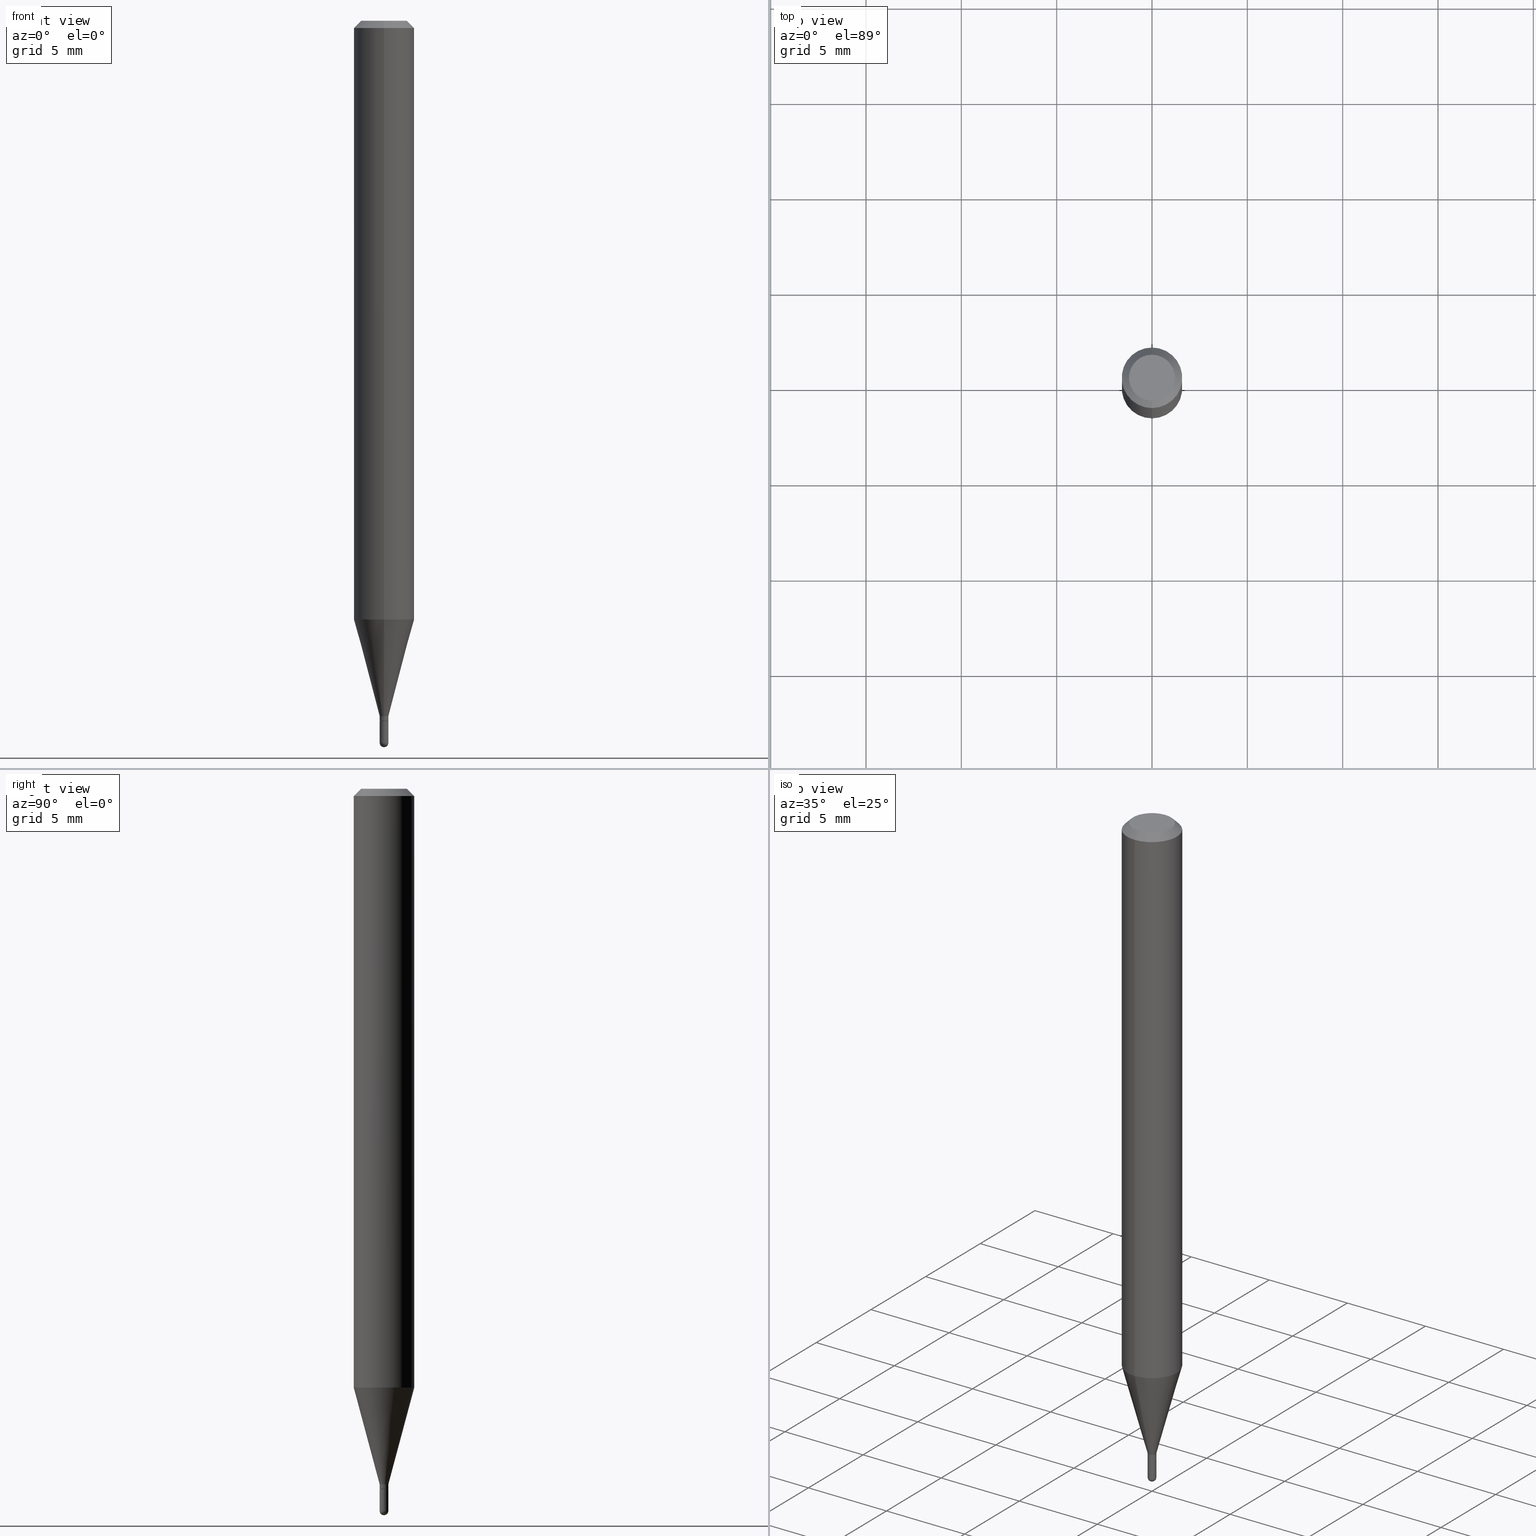
[diagram: canonical four-view strip — front | top / right | iso, engineering-drawing reading convention]
A machine part, canonical four-view strip (front | top / right | iso — engineering-drawing reading convention). The complete STEP part file that produces these views, byte-faithful:
ISO-10303-21;
HEADER;
FILE_DESCRIPTION (( 'STEP AP203' ),
    '1' );
FILE_NAME ('00456.STEP',
    '2024-03-07T17:58:19',
    ( '' ),
    ( '' ),
    'SwSTEP 2.0',
    'SolidWorks 2023',
    '' );
FILE_SCHEMA (( 'CONFIG_CONTROL_DESIGN' ));
ENDSEC;

DATA;
#1 = DIRECTION ( 'NONE',  ( 6.982962677686265922E-15, 1.000000000000000000, 0.000000000000000000 ) ) ;
#2 = LOCAL_TIME ( 12, 58, 19.00000000000000000, #109 ) ;
#3 = CC_DESIGN_SECURITY_CLASSIFICATION ( #285, ( #226 ) ) ;
#4 = DIRECTION ( 'NONE',  ( -6.982962677686265922E-15, -1.000000000000000000, 0.000000000000000000 ) ) ;
#5 = DIRECTION ( 'NONE',  ( -6.982962677686265922E-15, -1.000000000000000000, 3.491502631081576378E-15 ) ) ;
#6 = UNCERTAINTY_MEASURE_WITH_UNIT (LENGTH_MEASURE( 1.000000000000000082E-05 ), #19, 'distance_accuracy_value', 'NONE');
#7 = CARTESIAN_POINT ( 'NONE',  ( 3.645424340361776999E-29, -5.206900858334362902E-15, -1.491000000000000103 ) ) ;
#8 = EDGE_CURVE ( 'NONE', #213, #402, #412, .T. ) ;
#9 = LINE ( 'NONE', #166, #460 ) ;
#10 = AXIS2_PLACEMENT_3D ( 'NONE', #512, #437, #1 ) ;
#11 = ORIENTED_EDGE ( 'NONE', *, *, #274, .T. ) ;
#12 = EDGE_LOOP ( 'NONE', ( #209, #295, #25, #331 ) ) ;
#13 = DIRECTION ( 'NONE',  ( 5.024295867788190974E-15, 0.7071067811865681119, 0.7071067811865270336 ) ) ;
#14 =( NAMED_UNIT ( * ) SI_UNIT ( $, .STERADIAN. ) SOLID_ANGLE_UNIT ( ) );
#15 = CONICAL_SURFACE ( 'NONE', #248, 0.06250000000000000000, 0.7853981633974483900 ) ;
#16 = EDGE_LOOP ( 'NONE', ( #137, #494, #52, #21 ) ) ;
#17 = DIRECTION ( 'NONE',  ( 2.445453937894507262E-29, -3.491502631081576772E-15, -1.000000000000000000 ) ) ;
#18 = CARTESIAN_POINT ( 'NONE',  ( 3.536126394195458423E-29, -5.048712804543960535E-15, -1.446000000000000174 ) ) ;
#19 =( CONVERSION_BASED_UNIT ( 'INCH', #59 ) LENGTH_UNIT ( ) NAMED_UNIT ( #458 ) );
#20 = COORDINATED_UNIVERSAL_TIME_OFFSET ( 5, 0, .BEHIND. ) ;
#21 = ORIENTED_EDGE ( 'NONE', *, *, #191, .F. ) ;
#22 = EDGE_LOOP ( 'NONE', ( #371, #399, #63, #425 ) ) ;
#23 = DIRECTION ( 'NONE',  ( 1.000000000000000000, -6.982962677686266711E-15, 4.876176775795935232E-29 ) ) ;
#24 = EDGE_CURVE ( 'NONE', #465, #103, #496, .T. ) ;
#25 = ORIENTED_EDGE ( 'NONE', *, *, #415, .F. ) ;
#26 = CARTESIAN_POINT ( 'NONE',  ( 3.536147893743707559E-29, -5.048682015967188692E-15, -1.446000000000000174 ) ) ;
#27 = ORIENTED_EDGE ( 'NONE', *, *, #279, .T. ) ;
#28 = CARTESIAN_POINT ( 'NONE',  ( 6.284666409921301685E-17, 0.008999999999994817701, -1.491000000000000103 ) ) ;
#29 = VECTOR ( 'NONE', #325, 39.37007874015748143 ) ;
#30 = APPROVAL_PERSON_ORGANIZATION ( #232, #490, #510 ) ;
#31 = ORIENTED_EDGE ( 'NONE', *, *, #353, .T. ) ;
#32 = APPROVAL_ROLE ( '' ) ;
#33 = LINE ( 'NONE', #180, #74 ) ;
#34 = VECTOR ( 'NONE', #186, 39.37007874015748143 ) ;
#35 = DIRECTION ( 'NONE',  ( -2.445468806185136877E-29, 3.491481338843145188E-15, 1.000000000000000000 ) ) ;
#36 = DIRECTION ( 'NONE',  ( -2.445453937894507542E-29, 3.491502631081576772E-15, 1.000000000000000000 ) ) ;
#37 = CARTESIAN_POINT ( 'NONE',  ( 0.000000000000000000, 0.000000000000000000, 0.000000000000000000 ) ) ;
#38 = ADVANCED_FACE ( 'NONE', ( #445 ), #62, .T. ) ;
#39 = DIRECTION ( 'NONE',  ( -1.000000000000000000, 6.982962677686265922E-15, -4.876176775795935793E-29 ) ) ;
#40 = DIRECTION ( 'NONE',  ( -6.982962677686265922E-15, -1.000000000000000000, 0.000000000000000000 ) ) ;
#41 = CIRCLE ( 'NONE', #81, 0.06250000000000000000 ) ;
#42 = SPHERICAL_SURFACE ( 'NONE', #462, 0.009000000000000047892 ) ;
#43 = AXIS2_PLACEMENT_3D ( 'NONE', #374, #199, #155 ) ;
#44 = EDGE_CURVE ( 'NONE', #171, #203, #272, .T. ) ;
#45 = DIRECTION ( 'NONE',  ( -2.445453937894507542E-29, 3.491502631081576772E-15, 1.000000000000000000 ) ) ;
#46 = DIRECTION ( 'NONE',  ( -2.445453937894507542E-29, 3.491502631081576772E-15, 1.000000000000000000 ) ) ;
#47 = AXIS2_PLACEMENT_3D ( 'NONE', #466, #383, #69 ) ;
#48 = ORIENTED_EDGE ( 'NONE', *, *, #471, .F. ) ;
#49 = FACE_OUTER_BOUND ( 'NONE', #416, .T. ) ;
#50 = DIRECTION ( 'NONE',  ( -6.982962677686265922E-15, -1.000000000000000000, 3.491502631081576772E-15 ) ) ;
#51 = AXIS2_PLACEMENT_3D ( 'NONE', #245, #167, #130 ) ;
#52 = ORIENTED_EDGE ( 'NONE', *, *, #274, .F. ) ;
#53 = DIRECTION ( 'NONE',  ( -6.982962677686265922E-15, -1.000000000000000000, 3.491502631081576772E-15 ) ) ;
#54 = CONICAL_SURFACE ( 'NONE', #380, 0.008999999999999922992, 0.2617993877991502960 ) ;
#55 = CYLINDRICAL_SURFACE ( 'NONE', #156, 0.06250000000000000000 ) ;
#56 = EDGE_LOOP ( 'NONE', ( #356, #98, #500, #165 ) ) ;
#57 = ORIENTED_EDGE ( 'NONE', *, *, #424, .F. ) ;
#58 = MANIFOLD_SOLID_BREP ( 'Body-Move/Copy2[2]', #123 ) ;
#59 = LENGTH_MEASURE_WITH_UNIT ( LENGTH_MEASURE( 0.02539999999999999897 ), #244 );
#60 = EDGE_LOOP ( 'NONE', ( #487, #493 ) ) ;
#61 = APPROVAL_DATE_TIME ( #444, #196 ) ;
#62 = CYLINDRICAL_SURFACE ( 'NONE', #253, 0.008999999999999922992 ) ;
#63 = ORIENTED_EDGE ( 'NONE', *, *, #191, .T. ) ;
#64 = CARTESIAN_POINT ( 'NONE',  ( 3.668180906841763485E-31, -5.237253946622367771E-17, -0.01500000000000000812 ) ) ;
#65 = ORIENTED_EDGE ( 'NONE', *, *, #206, .T. ) ;
#66 = ADVANCED_FACE ( 'NONE', ( #294 ), #455, .T. ) ;
#67 = CARTESIAN_POINT ( 'NONE',  ( -4.287811248607203282E-16, -0.06250000000000005551, -0.01499999999999979128 ) ) ;
#68 = ORIENTED_EDGE ( 'NONE', *, *, #163, .T. ) ;
#69 = DIRECTION ( 'NONE',  ( -6.982962677686265922E-15, -1.000000000000000000, 4.370956789862821150E-15 ) ) ;
#70 = CIRCLE ( 'NONE', #492, 0.008999999999999922992 ) ;
#71 = EDGE_CURVE ( 'NONE', #332, #242, #178, .T. ) ;
#72 = CALENDAR_DATE ( 2024, 7, 3 ) ;
#73 = LINE ( 'NONE', #233, #315 ) ;
#74 = VECTOR ( 'NONE', #148, 39.37007874015748143 ) ;
#75 = APPROVAL_DATE_TIME ( #143, #347 ) ;
#76 = LINE ( 'NONE', #423, #34 ) ;
#77 = EDGE_CURVE ( 'NONE', #373, #106, #255, .T. ) ;
#78 = EDGE_CURVE ( 'NONE', #363, #213, #33, .T. ) ;
#79 = DIRECTION ( 'NONE',  ( 2.438088387897960049E-29, -3.491481338843145188E-15, -1.000000000000000000 ) ) ;
#80 = AXIS2_PLACEMENT_3D ( 'NONE', #439, #17, #481 ) ;
#81 = AXIS2_PLACEMENT_3D ( 'NONE', #200, #46, #403 ) ;
#82 = LINE ( 'NONE', #241, #119 ) ;
#83 = AXIS2_PLACEMENT_3D ( 'NONE', #390, #476, #122 ) ;
#84 = ORIENTED_EDGE ( 'NONE', *, *, #502, .F. ) ;
#85 = CARTESIAN_POINT ( 'NONE',  ( 3.511671854816513905E-29, -5.013797778233144791E-15, -1.436000000000000165 ) ) ;
#86 = EDGE_LOOP ( 'NONE', ( #11, #31, #108, #503 ) ) ;
#87 = FACE_OUTER_BOUND ( 'NONE', #101, .T. ) ;
#88 = PRODUCT_RELATED_PRODUCT_CATEGORY ( 'detail', '', ( #305 ) ) ;
#89 = EDGE_LOOP ( 'NONE', ( #448, #454, #411, #179 ) ) ;
#90 = CARTESIAN_POINT ( 'NONE',  ( 3.667818384447574198E-29, -5.237773099324335255E-15, -1.500000000000000222 ) ) ;
#91 = PLANE ( 'NONE',  #182 ) ;
#92 = FACE_OUTER_BOUND ( 'NONE', #86, .T. ) ;
#93 = EDGE_CURVE ( 'NONE', #402, #289, #76, .T. ) ;
#94 = DIRECTION ( 'NONE',  ( -2.445468806185136597E-29, 3.491481338843145583E-15, 1.000000000000000000 ) ) ;
#95 = CIRCLE ( 'NONE', #378, 0.008999999999999999320 ) ;
#96 = CONICAL_SURFACE ( 'NONE', #51, 0.008999999999999922992, 0.2617993877991502960 ) ;
#97 = APPROVAL_STATUS ( 'not_yet_approved' ) ;
#98 = ORIENTED_EDGE ( 'NONE', *, *, #124, .T. ) ;
#99 = LINE ( 'NONE', #453, #29 ) ;
#100 = CIRCLE ( 'NONE', #118, 0.008999999999999922992 ) ;
#101 = EDGE_LOOP ( 'NONE', ( #211, #369, #176, #368 ) ) ;
#102 = PERSON_AND_ORGANIZATION ( #223, #449 ) ;
#103 = VERTEX_POINT ( 'NONE', #336 ) ;
#104 = DATE_AND_TIME ( #469, #419 ) ;
#105 = DIRECTION ( 'NONE',  ( -6.982962677686265922E-15, -1.000000000000000000, 3.483106191921935554E-15 ) ) ;
#106 = VERTEX_POINT ( 'NONE', #227 ) ;
#107 = LINE ( 'NONE', #263, #474 ) ;
#108 = ORIENTED_EDGE ( 'NONE', *, *, #406, .F. ) ;
#109 = COORDINATED_UNIVERSAL_TIME_OFFSET ( 5, 0, .BEHIND. ) ;
#110 = CARTESIAN_POINT ( 'NONE',  ( 3.536126394195458423E-29, -5.048712804543960535E-15, -1.446000000000000174 ) ) ;
#111 = CC_DESIGN_PERSON_AND_ORGANIZATION_ASSIGNMENT ( #343, #265, ( #285 ) ) ;
#112 = COORDINATED_UNIVERSAL_TIME_OFFSET ( 5, 0, .BEHIND. ) ;
#113 = DIRECTION ( 'NONE',  ( -2.445453937894507542E-29, 3.491502631081576772E-15, 1.000000000000000000 ) ) ;
#114 = PERSON_AND_ORGANIZATION ( #223, #449 ) ;
#115 = CARTESIAN_POINT ( 'NONE',  ( -0.008999999999999999320, -5.063291499872750434E-15, -1.491000000000000103 ) ) ;
#116 = FACE_OUTER_BOUND ( 'NONE', #414, .T. ) ;
#117 = DIRECTION ( 'NONE',  ( -6.982962677686266711E-15, -1.000000000000000000, 3.491502631081576772E-15 ) ) ;
#118 = AXIS2_PLACEMENT_3D ( 'NONE', #189, #344, #507 ) ;
#119 = VECTOR ( 'NONE', #477, 39.37007874015748143 ) ;
#120 = EDGE_CURVE ( 'NONE', #359, #373, #73, .T. ) ;
#121 = LOCAL_TIME ( 12, 58, 19.00000000000000000, #112 ) ;
#122 = DIRECTION ( 'NONE',  ( 1.000000000000000000, -6.982962677686225690E-15, 0.000000000000000000 ) ) ;
#123 = CLOSED_SHELL ( 'NONE', ( #349, #66, #311, #452, #438, #318, #483, #157, #394, #387, #342, #38 ) ) ;
#124 = EDGE_CURVE ( 'NONE', #289, #450, #100, .T. ) ;
#125 = CARTESIAN_POINT ( 'NONE',  ( -6.284666409914073747E-17, -0.009000000000004936343, -1.436000000000000165 ) ) ;
#126 = CYLINDRICAL_SURFACE ( 'NONE', #480, 0.008999999999999922992 ) ;
#127 = CIRCLE ( 'NONE', #355, 0.06250000000000000000 ) ;
#128 = CYLINDRICAL_SURFACE ( 'NONE', #320, 0.06250000000000000000 ) ;
#129 = DIRECTION ( 'NONE',  ( 1.000000000000000000, -6.982962677686266711E-15, 4.876176775795935232E-29 ) ) ;
#130 = DIRECTION ( 'NONE',  ( -6.982962677686265922E-15, -1.000000000000000000, 0.000000000000000000 ) ) ;
#131 = CARTESIAN_POINT ( 'NONE',  ( 6.394884621844359852E-17, 0.008999999999994847191, -1.445500000000000229 ) ) ;
#132 = DIRECTION ( 'NONE',  ( -2.445468806185136877E-29, 3.491481338843145188E-15, 1.000000000000000000 ) ) ;
#133 = AXIS2_PLACEMENT_3D ( 'NONE', #302, #464, #467 ) ;
#134 = ORIENTED_EDGE ( 'NONE', *, *, #24, .F. ) ;
#135 = AXIS2_PLACEMENT_3D ( 'NONE', #18, #482, #367 ) ;
#136 = CARTESIAN_POINT ( 'NONE',  ( 0.000000000000000000, 0.000000000000000000, 0.000000000000000000 ) ) ;
#137 = ORIENTED_EDGE ( 'NONE', *, *, #8, .T. ) ;
#138 = ORIENTED_EDGE ( 'NONE', *, *, #120, .T. ) ;
#139 = EDGE_CURVE ( 'NONE', #332, #103, #151, .T. ) ;
#140 = VERTEX_POINT ( 'NONE', #115 ) ;
#141 = CARTESIAN_POINT ( 'NONE',  ( -6.284666409914071282E-17, -0.009000000000005000528, -1.445500000000000229 ) ) ;
#142 = ORIENTED_EDGE ( 'NONE', *, *, #77, .F. ) ;
#143 = DATE_AND_TIME ( #301, #2 ) ;
#144 = CIRCLE ( 'NONE', #135, 0.008499999999999998876 ) ;
#145 = DIRECTION ( 'NONE',  ( -6.982962677686265922E-15, -1.000000000000000000, 0.000000000000000000 ) ) ;
#146 = ORIENTED_EDGE ( 'NONE', *, *, #24, .T. ) ;
#147 = PERSON_AND_ORGANIZATION_ROLE ( 'creator' ) ;
#148 = DIRECTION ( 'NONE',  ( -4.937700262164674260E-15, -0.7071067811865632269, 0.7071067811865319186 ) ) ;
#149 = SHAPE_DEFINITION_REPRESENTATION ( #340, #170 ) ;
#150 = CARTESIAN_POINT ( 'NONE',  ( 3.536147893743707559E-29, -5.048682015967188692E-15, -1.446000000000000174 ) ) ;
#151 = LINE ( 'NONE', #67, #446 ) ;
#152 = DATE_TIME_ROLE ( 'creation_date' ) ;
#153 = PLANE ( 'NONE',  #268 ) ;
#154 = DIRECTION ( 'NONE',  ( -7.105427357601001859E-15, -1.000000000000000000, 0.000000000000000000 ) ) ;
#155 = DIRECTION ( 'NONE',  ( -6.982962677686265922E-15, -1.000000000000000000, 0.000000000000000000 ) ) ;
#156 = AXIS2_PLACEMENT_3D ( 'NONE', #440, #410, #210 ) ;
#157 = ADVANCED_FACE ( 'NONE', ( #501 ), #473, .T. ) ;
#158 = DIRECTION ( 'NONE',  ( -1.000000000000000000, 7.105427357601001070E-15, -4.926315508542082329E-29 ) ) ;
#159 = DIRECTION ( 'NONE',  ( -1.000000000000000000, 6.982962677686265922E-15, -4.883557194083112340E-29 ) ) ;
#160 = LINE ( 'NONE', #360, #427 ) ;
#161 = APPLICATION_CONTEXT ( 'configuration controlled 3d designs of mechanical parts and assemblies' ) ;
#162 = CIRCLE ( 'NONE', #197, 0.008999999999999999320 ) ;
#163 = EDGE_CURVE ( 'NONE', #334, #359, #162, .T. ) ;
#164 = AXIS2_PLACEMENT_3D ( 'NONE', #358, #324, #364 ) ;
#165 = ORIENTED_EDGE ( 'NONE', *, *, #44, .F. ) ;
#166 = CARTESIAN_POINT ( 'NONE',  ( 4.440892098500625669E-16, 0.06250000000000000000, -2.182189144425985483E-16 ) ) ;
#167 = DIRECTION ( 'NONE',  ( -2.445453937894507542E-29, 3.491502631081576772E-15, 1.000000000000000000 ) ) ;
#168 = APPLICATION_PROTOCOL_DEFINITION ( 'international standard', 'config_control_design', 1994, #161 ) ;
#169 = CARTESIAN_POINT ( 'NONE',  ( 0.000000000000000000, 0.000000000000000000, 0.000000000000000000 ) ) ;
#170 = ADVANCED_BREP_SHAPE_REPRESENTATION ( '00456', ( #393, #58, #313 ), #327 ) ;
#171 = VERTEX_POINT ( 'NONE', #498 ) ;
#172 = EDGE_CURVE ( 'NONE', #106, #373, #95, .T. ) ;
#173 = AXIS2_PLACEMENT_3D ( 'NONE', #405, #413, #129 ) ;
#174 = ORIENTED_EDGE ( 'NONE', *, *, #471, .T. ) ;
#175 = EDGE_CURVE ( 'NONE', #321, #181, #489, .T. ) ;
#176 = ORIENTED_EDGE ( 'NONE', *, *, #251, .F. ) ;
#177 = PERSON_AND_ORGANIZATION ( #223, #449 ) ;
#178 = CIRCLE ( 'NONE', #290, 0.04749999999999999362 ) ;
#179 = ORIENTED_EDGE ( 'NONE', *, *, #212, .F. ) ;
#180 = CARTESIAN_POINT ( 'NONE',  ( -5.935518276029789057E-17, -0.008500000000005046921, -1.446000000000000174 ) ) ;
#181 = VERTEX_POINT ( 'NONE', #28 ) ;
#182 = AXIS2_PLACEMENT_3D ( 'NONE', #204, #443, #53 ) ;
#183 = DIRECTION ( 'NONE',  ( 2.445453937894507542E-29, -3.491502631081576772E-15, -1.000000000000000000 ) ) ;
#184 = ORIENTED_EDGE ( 'NONE', *, *, #71, .T. ) ;
#185 = PERSON_AND_ORGANIZATION_ROLE ( 'design_supplier' ) ;
#186 = DIRECTION ( 'NONE',  ( -2.445453937894507542E-29, 3.491502631081576772E-15, 1.000000000000000000 ) ) ;
#187 = AXIS2_PLACEMENT_3D ( 'NONE', #395, #45, #258 ) ;
#188 = AXIS2_PLACEMENT_3D ( 'NONE', #238, #391, #4 ) ;
#189 = CARTESIAN_POINT ( 'NONE',  ( 3.511671854816513905E-29, -5.013797778233144791E-15, -1.436000000000000165 ) ) ;
#190 = AXIS2_PLACEMENT_3D ( 'NONE', #509, #307, #470 ) ;
#191 = EDGE_CURVE ( 'NONE', #213, #450, #107, .T. ) ;
#192 = SPHERICAL_SURFACE ( 'NONE', #10, 0.009000000000000047892 ) ;
#193 = APPLICATION_CONTEXT ( 'configuration controlled 3d designs of mechanical parts and assemblies' ) ;
#194 = DIRECTION ( 'NONE',  ( -2.445453937894507542E-29, 3.491502631081576772E-15, 1.000000000000000000 ) ) ;
#195 = FACE_OUTER_BOUND ( 'NONE', #286, .T. ) ;
#196 = APPROVAL ( #97, 'UNSPECIFIED' ) ;
#197 = AXIS2_PLACEMENT_3D ( 'NONE', #217, #298, #221 ) ;
#198 = DIRECTION ( 'NONE',  ( -2.445453937894507542E-29, 3.491502631081576772E-15, 1.000000000000000000 ) ) ;
#199 = DIRECTION ( 'NONE',  ( -2.445453937894507542E-29, 3.491502631081576772E-15, 1.000000000000000000 ) ) ;
#200 = CARTESIAN_POINT ( 'NONE',  ( 3.023400983423658885E-29, -4.316667889286455172E-15, -1.236335281795065688 ) ) ;
#201 = ORIENTED_EDGE ( 'NONE', *, *, #71, .F. ) ;
#202 = DIRECTION ( 'NONE',  ( 1.000000000000000000, -6.982962677686225690E-15, 0.000000000000000000 ) ) ;
#203 = VERTEX_POINT ( 'NONE', #428 ) ;
#204 = CARTESIAN_POINT ( 'NONE',  ( 3.536126394195458423E-29, -5.048712804543960535E-15, -1.446000000000000174 ) ) ;
#205 = LOCAL_TIME ( 12, 58, 19.00000000000000000, #20 ) ;
#206 = EDGE_CURVE ( 'NONE', #181, #140, #224, .T. ) ;
#207 = DIRECTION ( 'NONE',  ( 0.000000000000000000, 0.000000000000000000, 1.000000000000000000 ) ) ;
#208 = CIRCLE ( 'NONE', #43, 0.008499999999999998876 ) ;
#209 = ORIENTED_EDGE ( 'NONE', *, *, #175, .F. ) ;
#210 = DIRECTION ( 'NONE',  ( -6.982962677686265922E-15, -1.000000000000000000, 3.491502631081576772E-15 ) ) ;
#211 = ORIENTED_EDGE ( 'NONE', *, *, #270, .F. ) ;
#212 = EDGE_CURVE ( 'NONE', #203, #103, #377, .T. ) ;
#213 = VERTEX_POINT ( 'NONE', #141 ) ;
#214 = ORIENTED_EDGE ( 'NONE', *, *, #486, .F. ) ;
#215 = CYLINDRICAL_SURFACE ( 'NONE', #276, 0.008999999999999999320 ) ;
#216 = ORIENTED_EDGE ( 'NONE', *, *, #172, .F. ) ;
#217 = CARTESIAN_POINT ( 'NONE',  ( 3.646193990022038953E-29, -5.205798676215130324E-15, -1.491000000000000103 ) ) ;
#218 = CC_DESIGN_DATE_AND_TIME_ASSIGNMENT ( #506, #430, ( #285 ) ) ;
#219 = ORIENTED_EDGE ( 'NONE', *, *, #441, .F. ) ;
#220 = COORDINATED_UNIVERSAL_TIME_OFFSET ( 5, 0, .BEHIND. ) ;
#221 = DIRECTION ( 'NONE',  ( 1.000000000000000000, -6.982962677686225690E-15, 0.000000000000000000 ) ) ;
#222 = ORIENTED_EDGE ( 'NONE', *, *, #212, .T. ) ;
#223 = PERSON ( 'UNSPECIFIED', 'UNSPECIFIED', 'UNSPECIFIED', ('UNSPECIFIED'), ('UNSPECIFIED'), ('UNSPECIFIED') ) ;
#224 = CIRCLE ( 'NONE', #190, 0.008999999999999999320 ) ;
#225 = PERSON_AND_ORGANIZATION ( #223, #449 ) ;
#226 = PRODUCT_DEFINITION_FORMATION_WITH_SPECIFIED_SOURCE ( 'ANY', '', #305, .NOT_KNOWN. ) ;
#227 = CARTESIAN_POINT ( 'NONE',  ( -0.008999999999999999320, -5.063291499872750434E-15, -1.446000000000000174 ) ) ;
#228 = EDGE_CURVE ( 'NONE', #103, #465, #127, .T. ) ;
#229 = DIRECTION ( 'NONE',  ( 1.000000000000000000, -6.982962677686225690E-15, 0.000000000000000000 ) ) ;
#230 = AXIS2_PLACEMENT_3D ( 'NONE', #110, #333, #145 ) ;
#231 = CC_DESIGN_PERSON_AND_ORGANIZATION_ASSIGNMENT ( #292, #495, ( #305 ) ) ;
#232 = PERSON_AND_ORGANIZATION ( #223, #449 ) ;
#233 = CARTESIAN_POINT ( 'NONE',  ( 0.008999999999999999320, -6.284666409917639645E-17, 4.388559098216341408E-31 ) ) ;
#234 = DIRECTION ( 'NONE',  ( 6.982962677686265922E-15, 1.000000000000000000, -3.483106191921935554E-15 ) ) ;
#235 = CIRCLE ( 'NONE', #418, 0.04749999999999999362 ) ;
#236 = LOCAL_TIME ( 12, 58, 19.00000000000000000, #361 ) ;
#237 = CARTESIAN_POINT ( 'NONE',  ( 6.284666409921174728E-17, 0.008999999999994951275, -1.446000000000000174 ) ) ;
#238 = CARTESIAN_POINT ( 'NONE',  ( 3.534903667226511253E-29, -5.046967053228419353E-15, -1.445500000000000229 ) ) ;
#239 = CARTESIAN_POINT ( 'NONE',  ( -3.773273898774340269E-16, -0.04749999999999999362, 1.569870667658692521E-16 ) ) ;
#240 = EDGE_CURVE ( 'NONE', #363, #337, #208, .T. ) ;
#241 = CARTESIAN_POINT ( 'NONE',  ( 6.394884621844357387E-17, 0.008999999999994909641, -1.436000000000000165 ) ) ;
#242 = VERTEX_POINT ( 'NONE', #309 ) ;
#243 = PLANE ( 'NONE',  #80 ) ;
#244 =( LENGTH_UNIT ( ) NAMED_UNIT ( * ) SI_UNIT ( $, .METRE. ) );
#245 = CARTESIAN_POINT ( 'NONE',  ( 3.511671854816513905E-29, -5.013797778233144791E-15, -1.436000000000000165 ) ) ;
#246 = AXIS2_PLACEMENT_3D ( 'NONE', #64, #183, #271 ) ;
#247 = CYLINDRICAL_SURFACE ( 'NONE', #173, 0.008999999999999999320 ) ;
#248 = AXIS2_PLACEMENT_3D ( 'NONE', #346, #310, #234 ) ;
#249 = CC_DESIGN_APPROVAL ( #490, ( #285 ) ) ;
#250 = FACE_OUTER_BOUND ( 'NONE', #254, .T. ) ;
#251 = EDGE_CURVE ( 'NONE', #359, #181, #398, .T. ) ;
#252 = ORIENTED_EDGE ( 'NONE', *, *, #441, .T. ) ;
#253 = AXIS2_PLACEMENT_3D ( 'NONE', #266, #431, #426 ) ;
#254 = EDGE_LOOP ( 'NONE', ( #65, #264, #142, #300, #442 ) ) ;
#255 = CIRCLE ( 'NONE', #384, 0.008999999999999999320 ) ;
#256 = LINE ( 'NONE', #283, #397 ) ;
#257 = EDGE_LOOP ( 'NONE', ( #366, #497, #222, #134 ) ) ;
#258 = DIRECTION ( 'NONE',  ( -6.982962677686265922E-15, -1.000000000000000000, 3.483106191921935554E-15 ) ) ;
#259 = APPROVAL_ROLE ( '' ) ;
#260 = ORIENTED_EDGE ( 'NONE', *, *, #240, .T. ) ;
#261 = DIRECTION ( 'NONE',  ( -4.851104656540964275E-15, -0.7071067811865500152, -0.7071067811865450192 ) ) ;
#262 = ORIENTED_EDGE ( 'NONE', *, *, #279, .F. ) ;
#263 = CARTESIAN_POINT ( 'NONE',  ( -6.284666409917585411E-17, -0.008999999999999922992, 3.142352367973391697E-17 ) ) ;
#264 = ORIENTED_EDGE ( 'NONE', *, *, #502, .T. ) ;
#265 = PERSON_AND_ORGANIZATION_ROLE ( 'classification_officer' ) ;
#266 = CARTESIAN_POINT ( 'NONE',  ( 0.000000000000000000, 0.000000000000000000, 0.000000000000000000 ) ) ;
#267 = VECTOR ( 'NONE', #36, 39.37007874015748143 ) ;
#268 = AXIS2_PLACEMENT_3D ( 'NONE', #237, #79, #39 ) ;
#269 = DIRECTION ( 'NONE',  ( 1.000000000000000000, -6.982962677686225690E-15, 0.000000000000000000 ) ) ;
#270 = EDGE_CURVE ( 'NONE', #321, #334, #433, .T. ) ;
#271 = DIRECTION ( 'NONE',  ( 6.982962677686265922E-15, 1.000000000000000000, -3.483106191921935554E-15 ) ) ;
#272 = CIRCLE ( 'NONE', #47, 0.06250000000000000000 ) ;
#273 = CARTESIAN_POINT ( 'NONE',  ( -5.935518276029789057E-17, -0.008500000000005046921, -1.446000000000000174 ) ) ;
#274 = EDGE_CURVE ( 'NONE', #450, #289, #70, .T. ) ;
#275 = DIRECTION ( 'NONE',  ( -2.445453937894507542E-29, 3.491502631081576772E-15, 1.000000000000000000 ) ) ;
#276 = AXIS2_PLACEMENT_3D ( 'NONE', #136, #94, #23 ) ;
#277 = CC_DESIGN_APPROVAL ( #347, ( #226 ) ) ;
#278 = CARTESIAN_POINT ( 'NONE',  ( 2.166503015040211026E-46, -3.093229792654298365E-32, -8.859308210505618437E-18 ) ) ;
#279 = EDGE_CURVE ( 'NONE', #242, #332, #235, .T. ) ;
#280 = DIRECTION ( 'NONE',  ( -1.807323732225330928E-15, -0.2588190451025182970, 0.9659258262890689783 ) ) ;
#281 = DIRECTION ( 'NONE',  ( -2.445453937894507542E-29, 3.491502631081576772E-15, 1.000000000000000000 ) ) ;
#282 = CARTESIAN_POINT ( 'NONE',  ( 3.646193990022038953E-29, -5.205798676215130324E-15, -1.491000000000000103 ) ) ;
#283 = CARTESIAN_POINT ( 'NONE',  ( -0.008999999999999999320, 6.394884621840901190E-17, -4.427041581229414594E-31 ) ) ;
#284 = DIRECTION ( 'NONE',  ( -2.445453937894507542E-29, 3.491502631081576772E-15, 1.000000000000000000 ) ) ;
#285 = SECURITY_CLASSIFICATION ( '', '', #508 ) ;
#286 = EDGE_LOOP ( 'NONE', ( #293, #214 ) ) ;
#287 = ORIENTED_EDGE ( 'NONE', *, *, #8, .F. ) ;
#288 = ORIENTED_EDGE ( 'NONE', *, *, #139, .T. ) ;
#289 = VERTEX_POINT ( 'NONE', #435 ) ;
#290 = AXIS2_PLACEMENT_3D ( 'NONE', #505, #382, #338 ) ;
#291 = ADVANCED_FACE ( 'NONE', ( #350 ), #192, .T. ) ;
#292 = PERSON_AND_ORGANIZATION ( #223, #449 ) ;
#293 = ORIENTED_EDGE ( 'NONE', *, *, #240, .F. ) ;
#294 = FACE_OUTER_BOUND ( 'NONE', #457, .T. ) ;
#295 = ORIENTED_EDGE ( 'NONE', *, *, #270, .T. ) ;
#296 = CONICAL_SURFACE ( 'NONE', #352, 0.008499999999999998876, 0.7853981633974739252 ) ;
#297 = PERSON_AND_ORGANIZATION ( #223, #449 ) ;
#298 = DIRECTION ( 'NONE',  ( -2.445468806185136597E-29, 3.491481338843145583E-15, 1.000000000000000000 ) ) ;
#299 = VECTOR ( 'NONE', #280, 39.37007874015748143 ) ;
#300 = ORIENTED_EDGE ( 'NONE', *, *, #120, .F. ) ;
#301 = CALENDAR_DATE ( 2024, 7, 3 ) ;
#302 = CARTESIAN_POINT ( 'NONE',  ( 3.645424340361776999E-29, -5.206900858334362902E-15, -1.491000000000000103 ) ) ;
#303 = APPROVAL_DATE_TIME ( #104, #490 ) ;
#304 = DIRECTION ( 'NONE',  ( -2.445468806185136597E-29, 3.491481338843145583E-15, 1.000000000000000000 ) ) ;
#305 = PRODUCT ( '00456', '00456', '', ( #329 ) ) ;
#306 = CC_DESIGN_PERSON_AND_ORGANIZATION_ASSIGNMENT ( #297, #185, ( #226 ) ) ;
#307 = DIRECTION ( 'NONE',  ( -2.445468806185136597E-29, 3.491481338843145583E-15, 1.000000000000000000 ) ) ;
#308 = CALENDAR_DATE ( 2024, 7, 3 ) ;
#309 = CARTESIAN_POINT ( 'NONE',  ( 3.840629472727447874E-16, 0.04749999999999999362, -1.747056831868805136E-16 ) ) ;
#310 = DIRECTION ( 'NONE',  ( 2.445453937894507542E-29, -3.491502631081576772E-15, -1.000000000000000000 ) ) ;
#311 = ADVANCED_FACE ( 'NONE', ( #116 ), #15, .T. ) ;
#312 = FACE_OUTER_BOUND ( 'NONE', #16, .T. ) ;
#313 = AXIS2_PLACEMENT_3D ( 'NONE', #169, #207, #408 ) ;
#314 = CARTESIAN_POINT ( 'NONE',  ( 3.511671854816513905E-29, -5.013797778233144791E-15, -1.436000000000000165 ) ) ;
#315 = VECTOR ( 'NONE', #35, 39.37007874015748143 ) ;
#316 = DESIGN_CONTEXT ( 'detailed design', #193, 'design' ) ;
#317 = DIRECTION ( 'NONE',  ( -6.982962677686265922E-15, -1.000000000000000000, 0.000000000000000000 ) ) ;
#318 = ADVANCED_FACE ( 'NONE', ( #432 ), #54, .T. ) ;
#319 = FACE_OUTER_BOUND ( 'NONE', #89, .T. ) ;
#320 = AXIS2_PLACEMENT_3D ( 'NONE', #322, #284, #50 ) ;
#321 = VERTEX_POINT ( 'NONE', #90 ) ;
#322 = CARTESIAN_POINT ( 'NONE',  ( 0.000000000000000000, 0.000000000000000000, 0.000000000000000000 ) ) ;
#323 = ORIENTED_EDGE ( 'NONE', *, *, #486, .T. ) ;
#324 = DIRECTION ( 'NONE',  ( -2.445453937894507542E-29, 3.491502631081576772E-15, 1.000000000000000000 ) ) ;
#325 = DIRECTION ( 'NONE',  ( 4.937700262164548042E-15, 0.7071067811865451302, -0.7071067811865499042 ) ) ;
#326 = PERSON_AND_ORGANIZATION_ROLE ( 'creator' ) ;
#327 =( GEOMETRIC_REPRESENTATION_CONTEXT ( 3 ) GLOBAL_UNCERTAINTY_ASSIGNED_CONTEXT ( ( #6 ) ) GLOBAL_UNIT_ASSIGNED_CONTEXT ( ( #19, #491, #14 ) ) REPRESENTATION_CONTEXT ( 'NONE', 'WORKASPACE' ) );
#328 = EDGE_LOOP ( 'NONE', ( #84, #420, #68, #138, #216 ) ) ;
#329 = MECHANICAL_CONTEXT ( 'NONE', #161, 'mechanical' ) ;
#330 = CC_DESIGN_PERSON_AND_ORGANIZATION_ASSIGNMENT ( #225, #147, ( #226 ) ) ;
#331 = ORIENTED_EDGE ( 'NONE', *, *, #206, .F. ) ;
#332 = VERTEX_POINT ( 'NONE', #239 ) ;
#333 = DIRECTION ( 'NONE',  ( -2.445453937894507542E-29, 3.491502631081576772E-15, 1.000000000000000000 ) ) ;
#334 = VERTEX_POINT ( 'NONE', #351 ) ;
#335 = APPROVAL_STATUS ( 'not_yet_approved' ) ;
#336 = CARTESIAN_POINT ( 'NONE',  ( -4.364351673553912750E-16, -0.06250000000000005551, -0.01499999999999979128 ) ) ;
#337 = VERTEX_POINT ( 'NONE', #389 ) ;
#338 = DIRECTION ( 'NONE',  ( -6.982962677686266711E-15, -1.000000000000000000, 3.491502631081576772E-15 ) ) ;
#339 = CIRCLE ( 'NONE', #164, 0.008999999999999922992 ) ;
#340 = PRODUCT_DEFINITION_SHAPE ( 'NONE', 'NONE',  #463 ) ;
#341 = EDGE_LOOP ( 'NONE', ( #219, #323, #451, #57 ) ) ;
#342 = ADVANCED_FACE ( 'NONE', ( #479 ), #296, .T. ) ;
#343 = PERSON_AND_ORGANIZATION ( #223, #449 ) ;
#344 = DIRECTION ( 'NONE',  ( -2.445453937894507542E-29, 3.491502631081576772E-15, 1.000000000000000000 ) ) ;
#345 = DIRECTION ( 'NONE',  ( -2.445468806185136597E-29, 3.491481338843145583E-15, 1.000000000000000000 ) ) ;
#346 = CARTESIAN_POINT ( 'NONE',  ( 3.668180906841763485E-31, -5.237253946622367771E-17, -0.01500000000000000812 ) ) ;
#347 = APPROVAL ( #381, 'UNSPECIFIED' ) ;
#348 = LINE ( 'NONE', #125, #299 ) ;
#349 = ADVANCED_FACE ( 'NONE', ( #312 ), #126, .T. ) ;
#350 = FACE_OUTER_BOUND ( 'NONE', #12, .T. ) ;
#351 = CARTESIAN_POINT ( 'NONE',  ( -6.394884621837272429E-17, -0.009000000000005229511, -1.491000000000000103 ) ) ;
#352 = AXIS2_PLACEMENT_3D ( 'NONE', #392, #281, #40 ) ;
#353 = EDGE_CURVE ( 'NONE', #289, #171, #82, .T. ) ;
#354 = EDGE_CURVE ( 'NONE', #450, #203, #348, .T. ) ;
#355 = AXIS2_PLACEMENT_3D ( 'NONE', #459, #421, #105 ) ;
#356 = ORIENTED_EDGE ( 'NONE', *, *, #353, .F. ) ;
#357 = DIRECTION ( 'NONE',  ( -6.982962677686265922E-15, -1.000000000000000000, 0.000000000000000000 ) ) ;
#358 = CARTESIAN_POINT ( 'NONE',  ( 3.534903667226511253E-29, -5.046967053228419353E-15, -1.445500000000000229 ) ) ;
#359 = VERTEX_POINT ( 'NONE', #436 ) ;
#360 = CARTESIAN_POINT ( 'NONE',  ( 6.039613253964385864E-17, 0.008499999999994950831, -1.446000000000000174 ) ) ;
#361 = COORDINATED_UNIVERSAL_TIME_OFFSET ( 5, 0, .BEHIND. ) ;
#362 = CIRCLE ( 'NONE', #475, 0.008999999999999999320 ) ;
#363 = VERTEX_POINT ( 'NONE', #273 ) ;
#364 = DIRECTION ( 'NONE',  ( -6.982962677686265922E-15, -1.000000000000000000, 0.000000000000000000 ) ) ;
#365 = FACE_OUTER_BOUND ( 'NONE', #257, .T. ) ;
#366 = ORIENTED_EDGE ( 'NONE', *, *, #447, .F. ) ;
#367 = DIRECTION ( 'NONE',  ( -6.982962677686265922E-15, -1.000000000000000000, 0.000000000000000000 ) ) ;
#368 = ORIENTED_EDGE ( 'NONE', *, *, #163, .F. ) ;
#369 = ORIENTED_EDGE ( 'NONE', *, *, #175, .T. ) ;
#370 = CARTESIAN_POINT ( 'NONE',  ( 4.440892098500929873E-16, 0.06249999999999995143, -0.01500000000000022669 ) ) ;
#371 = ORIENTED_EDGE ( 'NONE', *, *, #93, .F. ) ;
#372 = ADVANCED_FACE ( 'NONE', ( #87 ), #42, .T. ) ;
#373 = VERTEX_POINT ( 'NONE', #400 ) ;
#374 = CARTESIAN_POINT ( 'NONE',  ( 3.536126394195458423E-29, -5.048712804543960535E-15, -1.446000000000000174 ) ) ;
#375 = ORIENTED_EDGE ( 'NONE', *, *, #139, .F. ) ;
#376 = DATE_AND_TIME ( #308, #205 ) ;
#377 = LINE ( 'NONE', #386, #267 ) ;
#378 = AXIS2_PLACEMENT_3D ( 'NONE', #150, #304, #229 ) ;
#379 = ORIENTED_EDGE ( 'NONE', *, *, #78, .F. ) ;
#380 = AXIS2_PLACEMENT_3D ( 'NONE', #85, #198, #317 ) ;
#381 = APPROVAL_STATUS ( 'not_yet_approved' ) ;
#382 = DIRECTION ( 'NONE',  ( -2.445453937894507542E-29, 3.491502631081576772E-15, 1.000000000000000000 ) ) ;
#383 = DIRECTION ( 'NONE',  ( -2.445453937894507542E-29, 3.491502631081576772E-15, 1.000000000000000000 ) ) ;
#384 = AXIS2_PLACEMENT_3D ( 'NONE', #26, #345, #269 ) ;
#385 = ADVANCED_FACE ( 'NONE', ( #511 ), #153, .F. ) ;
#386 = CARTESIAN_POINT ( 'NONE',  ( -4.364351673553916201E-16, -0.06250000000000000000, 2.182189144425985483E-16 ) ) ;
#387 = ADVANCED_FACE ( 'NONE', ( #195 ), #91, .F. ) ;
#388 = AXIS2_PLACEMENT_3D ( 'NONE', #472, #158, #154 ) ;
#389 = CARTESIAN_POINT ( 'NONE',  ( 6.217248937904383951E-17, 0.008499999999994950831, -1.446000000000000174 ) ) ;
#390 = CARTESIAN_POINT ( 'NONE',  ( 3.646193990022038953E-29, -5.205798676215130324E-15, -1.491000000000000103 ) ) ;
#391 = DIRECTION ( 'NONE',  ( -2.445453937894507542E-29, 3.491502631081576772E-15, 1.000000000000000000 ) ) ;
#392 = CARTESIAN_POINT ( 'NONE',  ( 3.536126394195458423E-29, -5.048712804543960535E-15, -1.446000000000000174 ) ) ;
#393 = MANIFOLD_SOLID_BREP ( 'Body-Move/Copy2[1]', #401 ) ;
#394 = ADVANCED_FACE ( 'NONE', ( #49 ), #243, .F. ) ;
#395 = CARTESIAN_POINT ( 'NONE',  ( 3.668180906841763485E-31, -5.237253946622367771E-17, -0.01500000000000000812 ) ) ;
#396 = DIRECTION ( 'NONE',  ( -2.445453937894507542E-29, 3.491502631081576772E-15, 1.000000000000000000 ) ) ;
#397 = VECTOR ( 'NONE', #132, 39.37007874015748143 ) ;
#398 = CIRCLE ( 'NONE', #83, 0.008999999999999999320 ) ;
#399 = ORIENTED_EDGE ( 'NONE', *, *, #424, .T. ) ;
#400 = CARTESIAN_POINT ( 'NONE',  ( 0.008999999999999999320, -5.111528680066364398E-15, -1.446000000000000174 ) ) ;
#401 = CLOSED_SHELL ( 'NONE', ( #478, #291, #385, #372, #499 ) ) ;
#402 = VERTEX_POINT ( 'NONE', #131 ) ;
#403 = DIRECTION ( 'NONE',  ( -6.982962677686265922E-15, -1.000000000000000000, 4.370956789862821150E-15 ) ) ;
#404 = CC_DESIGN_PERSON_AND_ORGANIZATION_ASSIGNMENT ( #177, #326, ( #463 ) ) ;
#405 = CARTESIAN_POINT ( 'NONE',  ( 0.000000000000000000, 0.000000000000000000, 0.000000000000000000 ) ) ;
#406 = EDGE_CURVE ( 'NONE', #203, #171, #41, .T. ) ;
#407 = DIRECTION ( 'NONE',  ( -2.445453937894507542E-29, 3.491502631081576772E-15, 1.000000000000000000 ) ) ;
#408 = DIRECTION ( 'NONE',  ( 1.000000000000000000, 0.000000000000000000, 0.000000000000000000 ) ) ;
#409 = APPROVAL_PERSON_ORGANIZATION ( #102, #196, #259 ) ;
#410 = DIRECTION ( 'NONE',  ( -2.445453937894507542E-29, 3.491502631081576772E-15, 1.000000000000000000 ) ) ;
#411 = ORIENTED_EDGE ( 'NONE', *, *, #228, .F. ) ;
#412 = CIRCLE ( 'NONE', #188, 0.008999999999999922992 ) ;
#413 = DIRECTION ( 'NONE',  ( -2.445468806185136597E-29, 3.491481338843145583E-15, 1.000000000000000000 ) ) ;
#414 = EDGE_LOOP ( 'NONE', ( #201, #288, #461, #48 ) ) ;
#415 = EDGE_CURVE ( 'NONE', #140, #334, #362, .T. ) ;
#416 = EDGE_LOOP ( 'NONE', ( #27, #184 ) ) ;
#417 = CALENDAR_DATE ( 2024, 7, 3 ) ;
#418 = AXIS2_PLACEMENT_3D ( 'NONE', #278, #275, #117 ) ;
#419 = LOCAL_TIME ( 12, 58, 19.00000000000000000, #220 ) ;
#420 = ORIENTED_EDGE ( 'NONE', *, *, #415, .T. ) ;
#421 = DIRECTION ( 'NONE',  ( -2.445453937894507542E-29, 3.491502631081576772E-15, 1.000000000000000000 ) ) ;
#422 = EDGE_LOOP ( 'NONE', ( #375, #262, #174, #146 ) ) ;
#423 = CARTESIAN_POINT ( 'NONE',  ( 6.394884621840845723E-17, 0.008999999999999922992, -3.142352367973391697E-17 ) ) ;
#424 = EDGE_CURVE ( 'NONE', #402, #213, #339, .T. ) ;
#425 = ORIENTED_EDGE ( 'NONE', *, *, #124, .F. ) ;
#426 = DIRECTION ( 'NONE',  ( -6.982962677686265922E-15, -1.000000000000000000, 3.491502631081576378E-15 ) ) ;
#427 = VECTOR ( 'NONE', #13, 39.37007874015748143 ) ;
#428 = CARTESIAN_POINT ( 'NONE',  ( -4.364351673553614462E-16, -0.06250000000000431599, -1.236335281795065466 ) ) ;
#429 = CC_DESIGN_DATE_AND_TIME_ASSIGNMENT ( #376, #152, ( #463 ) ) ;
#430 = DATE_TIME_ROLE ( 'classification_date' ) ;
#431 = DIRECTION ( 'NONE',  ( -2.445453937894507542E-29, 3.491502631081576772E-15, 1.000000000000000000 ) ) ;
#432 = FACE_OUTER_BOUND ( 'NONE', #56, .T. ) ;
#433 = CIRCLE ( 'NONE', #388, 0.009000000000000047892 ) ;
#434 = DIRECTION ( 'NONE',  ( 6.982962677686265922E-15, 1.000000000000000000, 0.000000000000000000 ) ) ;
#435 = CARTESIAN_POINT ( 'NONE',  ( 2.540190280342682868E-16, 0.008999999999994909641, -1.436000000000000165 ) ) ;
#436 = CARTESIAN_POINT ( 'NONE',  ( 0.008999999999999999320, -5.190087010190335214E-15, -1.491000000000000103 ) ) ;
#437 = DIRECTION ( 'NONE',  ( -1.000000000000000000, 6.982962677686265922E-15, -4.883557194083112340E-29 ) ) ;
#438 = ADVANCED_FACE ( 'NONE', ( #92 ), #96, .T. ) ;
#439 = CARTESIAN_POINT ( 'NONE',  ( 3.316907271900976096E-16, 0.04749999999999999362, -1.702760290816277106E-16 ) ) ;
#440 = CARTESIAN_POINT ( 'NONE',  ( 0.000000000000000000, 0.000000000000000000, 0.000000000000000000 ) ) ;
#441 = EDGE_CURVE ( 'NONE', #337, #402, #160, .T. ) ;
#442 = ORIENTED_EDGE ( 'NONE', *, *, #251, .T. ) ;
#443 = DIRECTION ( 'NONE',  ( -2.445453937894507262E-29, 3.491502631081576772E-15, 1.000000000000000000 ) ) ;
#444 = DATE_AND_TIME ( #417, #236 ) ;
#445 = FACE_OUTER_BOUND ( 'NONE', #22, .T. ) ;
#446 = VECTOR ( 'NONE', #261, 39.37007874015748143 ) ;
#447 = EDGE_CURVE ( 'NONE', #171, #465, #9, .T. ) ;
#448 = ORIENTED_EDGE ( 'NONE', *, *, #406, .T. ) ;
#449 = ORGANIZATION ( 'UNSPECIFIED', 'UNSPECIFIED', '' ) ;
#450 = VERTEX_POINT ( 'NONE', #488 ) ;
#451 = ORIENTED_EDGE ( 'NONE', *, *, #78, .T. ) ;
#452 = ADVANCED_FACE ( 'NONE', ( #319 ), #128, .T. ) ;
#453 = CARTESIAN_POINT ( 'NONE',  ( 4.364351673553919652E-16, 0.06249999999999995143, -0.01500000000000022669 ) ) ;
#454 = ORIENTED_EDGE ( 'NONE', *, *, #447, .T. ) ;
#455 = CONICAL_SURFACE ( 'NONE', #230, 0.008499999999999998876, 0.7853981633974739252 ) ;
#456 = APPLICATION_PROTOCOL_DEFINITION ( 'international standard', 'config_control_design', 1994, #193 ) ;
#457 = EDGE_LOOP ( 'NONE', ( #260, #252, #287, #379 ) ) ;
#458 = DIMENSIONAL_EXPONENTS ( 1.000000000000000000, 0.000000000000000000, 0.000000000000000000, 0.000000000000000000, 0.000000000000000000, 0.000000000000000000, 0.000000000000000000 ) ;
#459 = CARTESIAN_POINT ( 'NONE',  ( 3.668180906841763485E-31, -5.237253946622367771E-17, -0.01500000000000000812 ) ) ;
#460 = VECTOR ( 'NONE', #407, 39.37007874015748143 ) ;
#461 = ORIENTED_EDGE ( 'NONE', *, *, #228, .T. ) ;
#462 = AXIS2_PLACEMENT_3D ( 'NONE', #7, #159, #434 ) ;
#463 = PRODUCT_DEFINITION ( 'UNKNOWN', '', #226, #316 ) ;
#464 = DIRECTION ( 'NONE',  ( 1.000000000000000000, -6.982962677686265922E-15, 4.883557194083112340E-29 ) ) ;
#465 = VERTEX_POINT ( 'NONE', #370 ) ;
#466 = CARTESIAN_POINT ( 'NONE',  ( 3.023400983423658885E-29, -4.316667889286455172E-15, -1.236335281795065688 ) ) ;
#467 = DIRECTION ( 'NONE',  ( 6.982962677686265922E-15, 1.000000000000000000, 0.000000000000000000 ) ) ;
#468 = CC_DESIGN_APPROVAL ( #196, ( #463 ) ) ;
#469 = CALENDAR_DATE ( 2024, 7, 3 ) ;
#470 = DIRECTION ( 'NONE',  ( 1.000000000000000000, -6.982962677686225690E-15, 0.000000000000000000 ) ) ;
#471 = EDGE_CURVE ( 'NONE', #242, #465, #99, .T. ) ;
#472 = CARTESIAN_POINT ( 'NONE',  ( 3.645424340361776999E-29, -5.206900858334362902E-15, -1.491000000000000103 ) ) ;
#473 = CONICAL_SURFACE ( 'NONE', #246, 0.06250000000000000000, 0.7853981633974483900 ) ;
#474 = VECTOR ( 'NONE', #113, 39.37007874015748143 ) ;
#475 = AXIS2_PLACEMENT_3D ( 'NONE', #282, #484, #202 ) ;
#476 = DIRECTION ( 'NONE',  ( -2.445468806185136597E-29, 3.491481338843145583E-15, 1.000000000000000000 ) ) ;
#477 = DIRECTION ( 'NONE',  ( 1.839019923739601104E-15, 0.2588190451025250693, 0.9659258262890670910 ) ) ;
#478 = ADVANCED_FACE ( 'NONE', ( #250 ), #247, .T. ) ;
#479 = FACE_OUTER_BOUND ( 'NONE', #341, .T. ) ;
#480 = AXIS2_PLACEMENT_3D ( 'NONE', #37, #194, #5 ) ;
#481 = DIRECTION ( 'NONE',  ( 6.982962677686265922E-15, 1.000000000000000000, -3.491502631081576772E-15 ) ) ;
#482 = DIRECTION ( 'NONE',  ( -2.445453937894507542E-29, 3.491502631081576772E-15, 1.000000000000000000 ) ) ;
#483 = ADVANCED_FACE ( 'NONE', ( #365 ), #55, .T. ) ;
#484 = DIRECTION ( 'NONE',  ( -2.445468806185136597E-29, 3.491481338843145583E-15, 1.000000000000000000 ) ) ;
#485 = FACE_OUTER_BOUND ( 'NONE', #328, .T. ) ;
#486 = EDGE_CURVE ( 'NONE', #337, #363, #144, .T. ) ;
#487 = ORIENTED_EDGE ( 'NONE', *, *, #77, .T. ) ;
#488 = CARTESIAN_POINT ( 'NONE',  ( -6.284666409914073747E-17, -0.009000000000004936343, -1.436000000000000165 ) ) ;
#489 = CIRCLE ( 'NONE', #133, 0.009000000000000047892 ) ;
#490 = APPROVAL ( #335, 'UNSPECIFIED' ) ;
#491 =( NAMED_UNIT ( * ) PLANE_ANGLE_UNIT ( ) SI_UNIT ( $, .RADIAN. ) );
#492 = AXIS2_PLACEMENT_3D ( 'NONE', #314, #396, #357 ) ;
#493 = ORIENTED_EDGE ( 'NONE', *, *, #172, .T. ) ;
#494 = ORIENTED_EDGE ( 'NONE', *, *, #93, .T. ) ;
#495 = PERSON_AND_ORGANIZATION_ROLE ( 'design_owner' ) ;
#496 = CIRCLE ( 'NONE', #187, 0.06250000000000000000 ) ;
#497 = ORIENTED_EDGE ( 'NONE', *, *, #44, .T. ) ;
#498 = CARTESIAN_POINT ( 'NONE',  ( 4.440892098500925929E-16, 0.06249999999999566319, -1.236335281795066132 ) ) ;
#499 = ADVANCED_FACE ( 'NONE', ( #485 ), #215, .T. ) ;
#500 = ORIENTED_EDGE ( 'NONE', *, *, #354, .T. ) ;
#501 = FACE_OUTER_BOUND ( 'NONE', #422, .T. ) ;
#502 = EDGE_CURVE ( 'NONE', #140, #106, #256, .T. ) ;
#503 = ORIENTED_EDGE ( 'NONE', *, *, #354, .F. ) ;
#504 = APPROVAL_PERSON_ORGANIZATION ( #114, #347, #32 ) ;
#505 = CARTESIAN_POINT ( 'NONE',  ( 2.166503015040211026E-46, -3.093229792654298365E-32, -8.859308210505618437E-18 ) ) ;
#506 = DATE_AND_TIME ( #72, #121 ) ;
#507 = DIRECTION ( 'NONE',  ( -6.982962677686265922E-15, -1.000000000000000000, 0.000000000000000000 ) ) ;
#508 = SECURITY_CLASSIFICATION_LEVEL ( 'unclassified' ) ;
#509 = CARTESIAN_POINT ( 'NONE',  ( 3.646193990022038953E-29, -5.205798676215130324E-15, -1.491000000000000103 ) ) ;
#510 = APPROVAL_ROLE ( '' ) ;
#511 = FACE_OUTER_BOUND ( 'NONE', #60, .T. ) ;
#512 = CARTESIAN_POINT ( 'NONE',  ( 3.645424340361776999E-29, -5.206900858334362902E-15, -1.491000000000000103 ) ) ;
ENDSEC;
END-ISO-10303-21;
